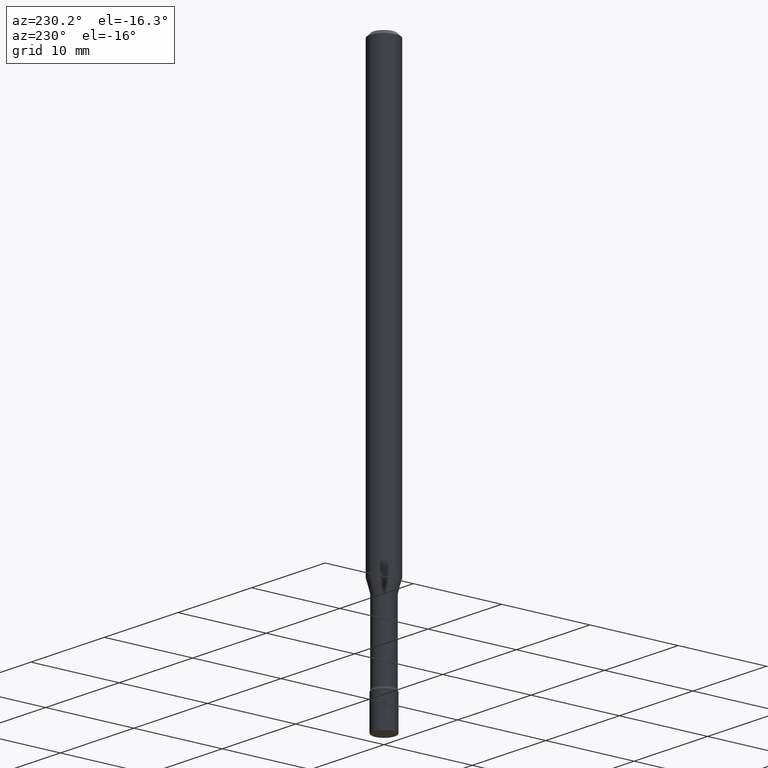
[diagram: clean part render]
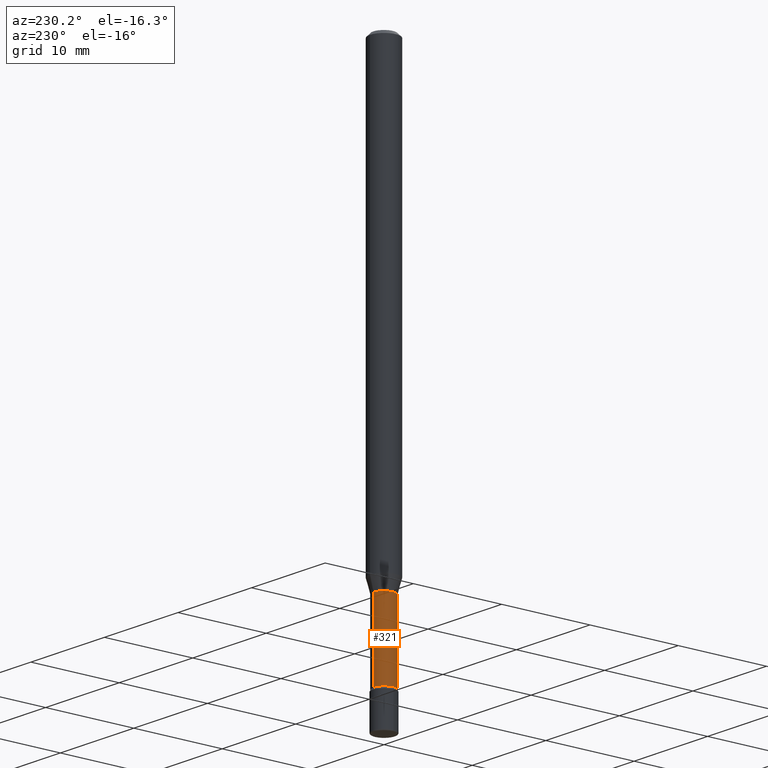
[diagram: same view with one face highlighted and labeled with its STEP entity id]
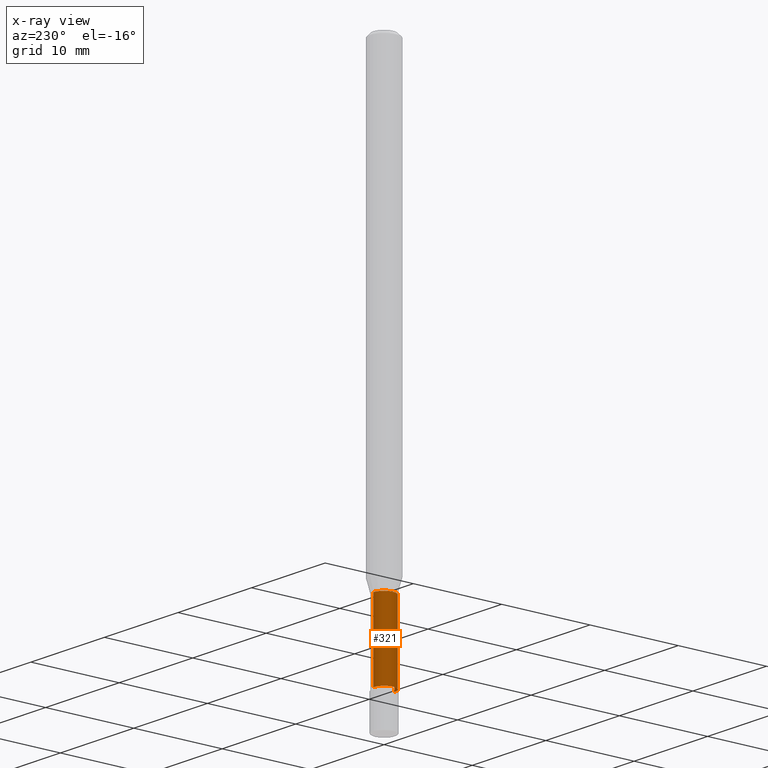
[diagram: x-ray of the same camera — body ghosted, the highlighted face saturated]
A machine part, auxiliary view. The second image highlights one B-rep face of the part: STEP entity #321.
The next image is the same camera in x-ray: the body ghosted, the highlighted face saturated — about 0% of this face is hidden behind the body in this view.
In plain terms, the highlighted cylindrical surface (edge-blend (fillet) strip) has radius 1.1938 mm, axis along (-0, 0, 1).
Its self-contained STEP definition (entity closure, byte-faithful):
#1 = CARTESIAN_POINT ( 'NONE',  ( -3.281992458512545531E-16, -0.04700000000000000705, 6.421681338784253533E-16 ) ) ;
#25 = VERTEX_POINT ( 'NONE', #318 ) ;
#61 = EDGE_CURVE ( 'NONE', #348, #25, #266, .T. ) ;
#63 = CARTESIAN_POINT ( 'NONE',  ( 4.895912280719391732E-29, -6.989649408508267577E-15, -2.001974787463811190 ) ) ;
#66 = VERTEX_POINT ( 'NONE', #252 ) ;
#78 = CARTESIAN_POINT ( 'NONE',  ( 5.725012483141114982E-29, -8.173314353297587961E-15, -2.341000000000000192 ) ) ;
#80 = CARTESIAN_POINT ( 'NONE',  ( -1.169113584055446105E-44, 1.669184350826100908E-30, 4.780733988912460139E-16 ) ) ;
#83 = DIRECTION ( 'NONE',  ( -2.445541428082492260E-29, 3.491377340152750324E-15, 1.000000000000000000 ) ) ;
#94 = DIRECTION ( 'NONE',  ( -2.445541428082492260E-29, 3.491377340152750324E-15, 1.000000000000000000 ) ) ;
#101 = VERTEX_POINT ( 'NONE', #276 ) ;
#114 = CARTESIAN_POINT ( 'NONE',  ( 3.446132268437060393E-16, 0.04699999999999183303, -2.341000000000000192 ) ) ;
#122 = DIRECTION ( 'NONE',  ( -2.445541428082492260E-29, 3.491377340152750324E-15, 1.000000000000000000 ) ) ;
#123 = CIRCLE ( 'NONE', #205, 0.04700000000000000705 ) ;
#131 = EDGE_CURVE ( 'NONE', #25, #66, #325, .T. ) ;
#171 = ORIENTED_EDGE ( 'NONE', *, *, #131, .F. ) ;
#173 = CYLINDRICAL_SURFACE ( 'NONE', #297, 0.04700000000000000705 ) ;
#177 = VECTOR ( 'NONE', #83, 39.37007874015748143 ) ;
#205 = AXIS2_PLACEMENT_3D ( 'NONE', #78, #122, #474 ) ;
#218 = DIRECTION ( 'NONE',  ( -6.982962677686265922E-15, -1.000000000000000000, 3.491377340152749929E-15 ) ) ;
#244 = EDGE_CURVE ( 'NONE', #348, #101, #123, .T. ) ;
#250 = ORIENTED_EDGE ( 'NONE', *, *, #412, .T. ) ;
#252 = CARTESIAN_POINT ( 'NONE',  ( -3.281992458512055945E-16, -0.04700000000000699452, -2.001974787463810745 ) ) ;
#264 = EDGE_LOOP ( 'NONE', ( #344, #304, #250, #171 ) ) ;
#266 = LINE ( 'NONE', #457, #268 ) ;
#268 = VECTOR ( 'NONE', #94, 39.37007874015748143 ) ;
#276 = CARTESIAN_POINT ( 'NONE',  ( -3.281992458511972621E-16, -0.04700000000000817413, -2.340999999999999748 ) ) ;
#297 = AXIS2_PLACEMENT_3D ( 'NONE', #80, #350, #218 ) ;
#304 = ORIENTED_EDGE ( 'NONE', *, *, #244, .T. ) ;
#318 = CARTESIAN_POINT ( 'NONE',  ( 3.339550858073042806E-16, 0.04699999999999300571, -2.001974787463811190 ) ) ;
#321 = ADVANCED_FACE ( 'NONE', ( #347 ), #173, .T. ) ;
#325 = CIRCLE ( 'NONE', #442, 0.04700000000000000705 ) ;
#344 = ORIENTED_EDGE ( 'NONE', *, *, #61, .F. ) ;
#347 = FACE_OUTER_BOUND ( 'NONE', #264, .T. ) ;
#348 = VERTEX_POINT ( 'NONE', #114 ) ;
#350 = DIRECTION ( 'NONE',  ( -2.445541428082492260E-29, 3.491377340152750324E-15, 1.000000000000000000 ) ) ;
#412 = EDGE_CURVE ( 'NONE', #101, #66, #538, .T. ) ;
#442 = AXIS2_PLACEMENT_3D ( 'NONE', #63, #507, #539 ) ;
#457 = CARTESIAN_POINT ( 'NONE',  ( 3.339550858072470388E-16, 0.04700000000000000705, 3.139786639040668225E-16 ) ) ;
#474 = DIRECTION ( 'NONE',  ( -6.982962677686265922E-15, -1.000000000000000000, 5.812442539711197800E-15 ) ) ;
#507 = DIRECTION ( 'NONE',  ( -2.445541428082492260E-29, 3.491377340152750324E-15, 1.000000000000000000 ) ) ;
#538 = LINE ( 'NONE', #1, #177 ) ;
#539 = DIRECTION ( 'NONE',  ( -6.982962677686265922E-15, -1.000000000000000000, 5.812442539711197800E-15 ) ) ;